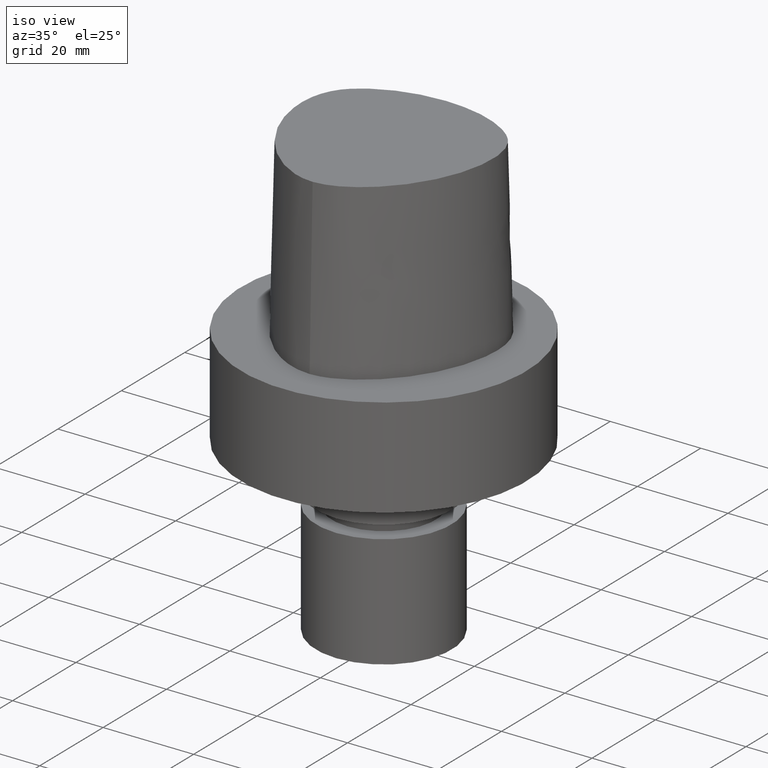
[diagram: clean part render]
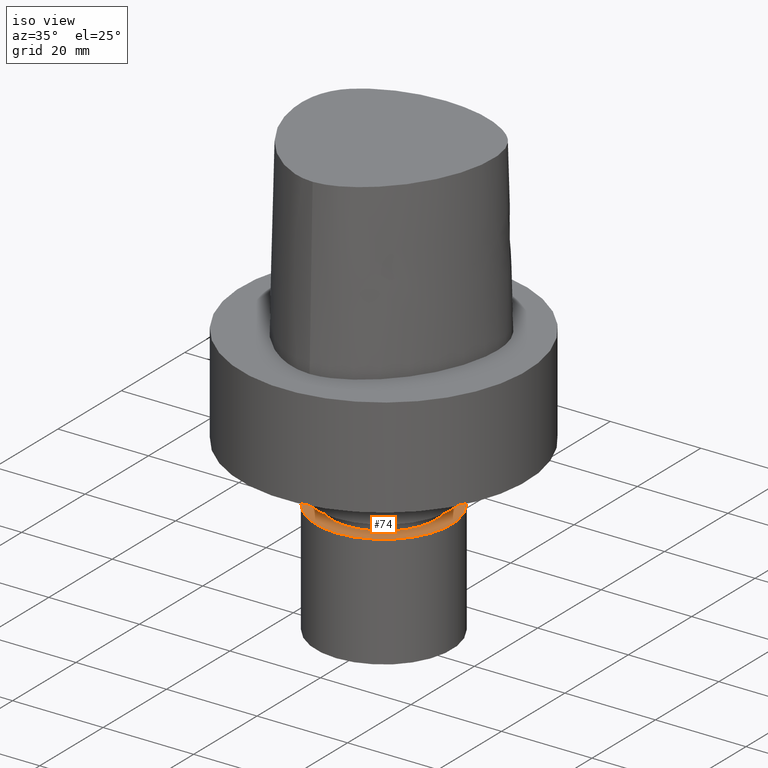
[diagram: same view with one face highlighted and labeled with its STEP entity id]
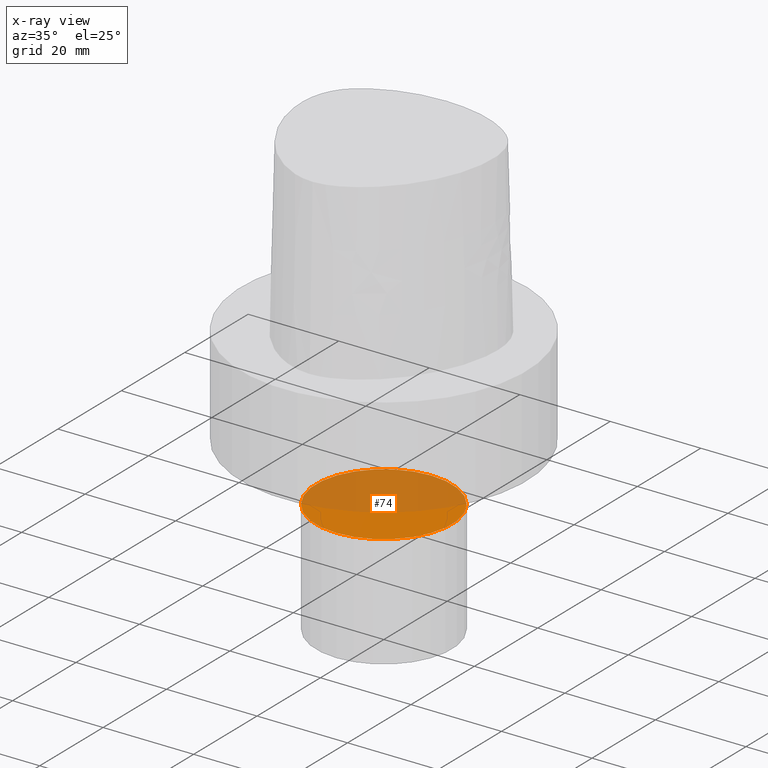
[diagram: x-ray of the same camera — body ghosted, the highlighted face saturated]
A machine part, iso view. The second image highlights one B-rep face of the part: STEP entity #74.
The next image is the same camera in x-ray: the body ghosted, the highlighted face saturated — about 60% of this face is hidden behind the body in this view.
In plain terms, the highlighted planar face has unit normal (-0, -0, 1).
Its self-contained STEP definition (entity closure, byte-faithful):
#74=ADVANCED_FACE('Unnamed[1]',(#193),#194,.T.);
#103=EDGE_CURVE('Unnamed[1]',#238,#238,#239,.T.);
#193=FACE_OUTER_BOUND('',#351,.T.);
#194=PLANE('',#352);
#238=VERTEX_POINT('',#455);
#239=CIRCLE('',#456,15.0000000000001);
#351=EDGE_LOOP('',(#738));
#352=AXIS2_PLACEMENT_3D('',#739,#740,#741);
#455=CARTESIAN_POINT('',(2.14313189850787E-015,15.0000000000001,-35.0));
#456=AXIS2_PLACEMENT_3D('',#775,#776,#777);
#738=ORIENTED_EDGE('',*,*,#103,.F.);
#739=CARTESIAN_POINT('',(2.14313189850787E-015,7.50000000000004,-35.0));
#740=DIRECTION('',(-6.12323399573677E-017,-1.22464679914735E-016,1.0));
#741=DIRECTION('',(1.23259516440783E-032,-1.0,-1.22464679914735E-016));
#775=CARTESIAN_POINT('',(2.14313189850787E-015,4.28626379701574E-015,-35.0));
#776=DIRECTION('',(6.12323399573677E-017,1.22464679914735E-016,-1.0));
#777=DIRECTION('',(-1.23259516440783E-032,1.0,1.22464679914735E-016));